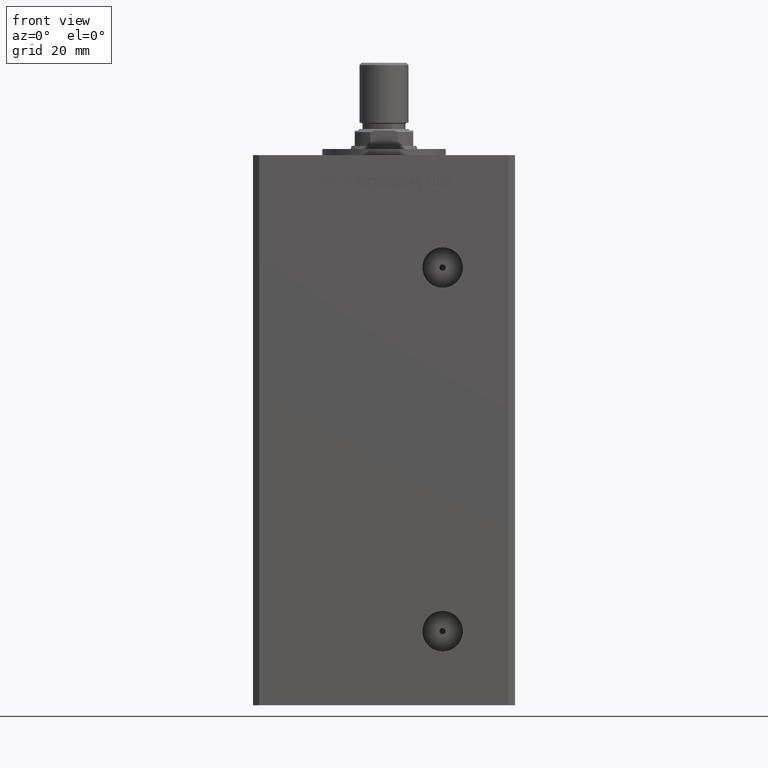
[diagram: clean part render]
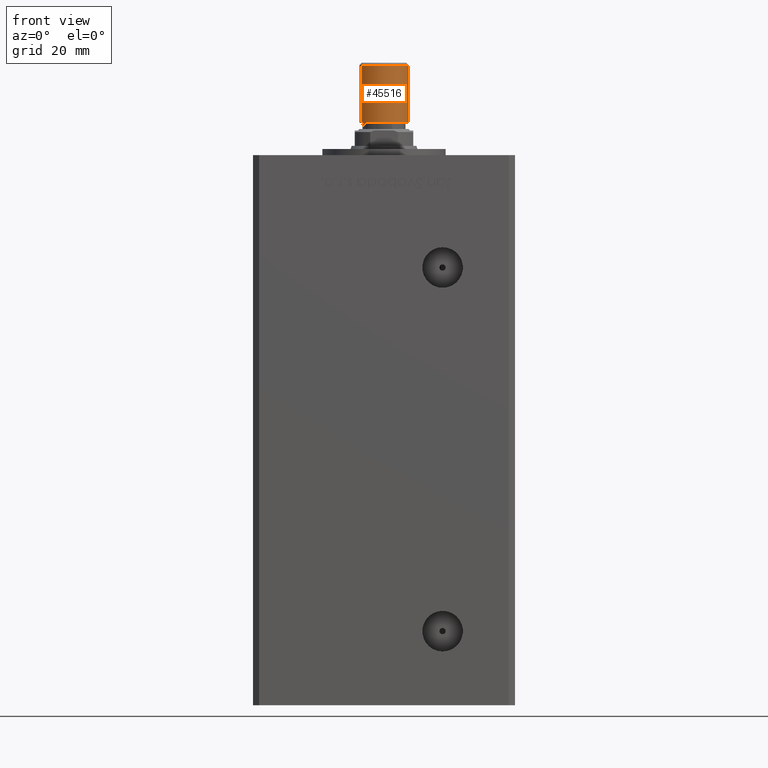
[diagram: same view with one face highlighted and labeled with its STEP entity id]
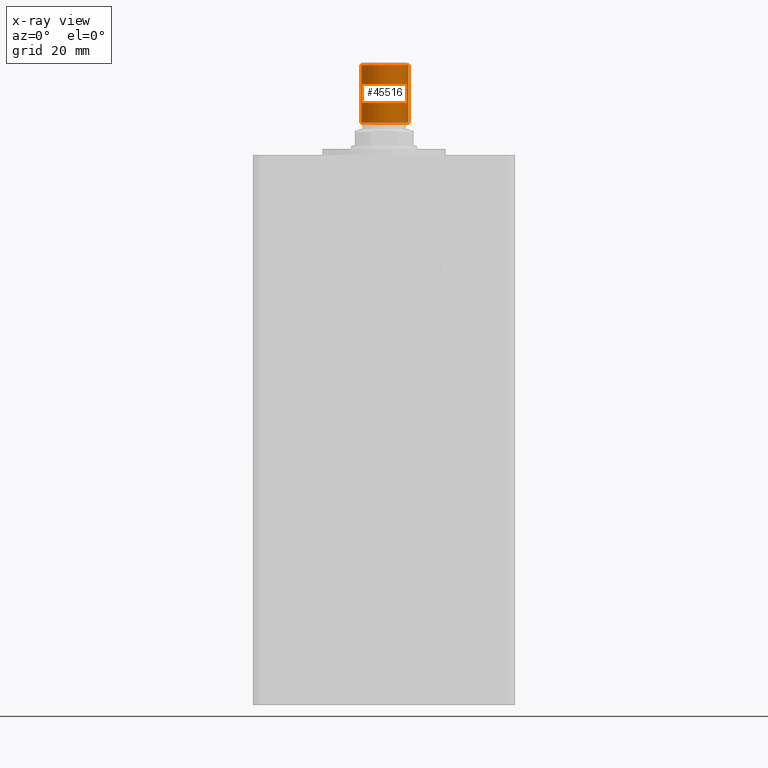
[diagram: x-ray of the same camera — body ghosted, the highlighted face saturated]
A machine part, front view. The second image highlights one B-rep face of the part: STEP entity #45516.
The next image is the same camera in x-ray: the body ghosted, the highlighted face saturated — about 0% of this face is hidden behind the body in this view.
In plain terms, the highlighted cylindrical surface (edge-blend (fillet) strip) has radius 8 mm, axis along (0, 0, 1).
Its self-contained STEP definition (entity closure, byte-faithful):
#2758 = EDGE_CURVE ( 'NONE', #9839, #23476, #8991, .T. ) ;
#3730 = EDGE_CURVE ( 'NONE', #34249, #23476, #21559, .T. ) ;
#4025 = EDGE_CURVE ( 'NONE', #19328, #9839, #4631, .T. ) ;
#4631 = CIRCLE ( 'NONE', #28347, 8.000000000000000000 ) ;
#5004 = DIRECTION ( 'NONE',  ( -0.000000000000000000, -0.000000000000000000, -1.000000000000000000 ) ) ;
#7512 = DIRECTION ( 'NONE',  ( 1.000000000000000000, 0.000000000000000000, 0.000000000000000000 ) ) ;
#7794 = CARTESIAN_POINT ( 'NONE',  ( 0.000000000000000000, 0.000000000000000000, 19.50000000000000000 ) ) ;
#8991 = LINE ( 'NONE', #41346, #50321 ) ;
#9839 = VERTEX_POINT ( 'NONE', #27697 ) ;
#10300 = CARTESIAN_POINT ( 'NONE',  ( -8.000000000000000000, 0.000000000000000000, 19.50000000000000000 ) ) ;
#13200 = EDGE_LOOP ( 'NONE', ( #34883, #52063, #45980, #17167 ) ) ;
#14953 = DIRECTION ( 'NONE',  ( -0.000000000000000000, -0.000000000000000000, 1.000000000000000000 ) ) ;
#16027 = CYLINDRICAL_SURFACE ( 'NONE', #51405, 8.000000000000000000 ) ;
#17167 = ORIENTED_EDGE ( 'NONE', *, *, #3730, .T. ) ;
#17933 = LINE ( 'NONE', #43106, #24877 ) ;
#18602 = DIRECTION ( 'NONE',  ( 1.000000000000000000, 0.000000000000000000, 0.000000000000000000 ) ) ;
#18630 = CARTESIAN_POINT ( 'NONE',  ( 8.000000000000000000, 9.797174393178825657E-16, 0.8000000000000055955 ) ) ;
#19328 = VERTEX_POINT ( 'NONE', #10300 ) ;
#21559 = CIRCLE ( 'NONE', #51204, 8.000000000000000000 ) ;
#22565 = CARTESIAN_POINT ( 'NONE',  ( -8.000000000000000000, 0.000000000000000000, 0.8000000000000055955 ) ) ;
#23476 = VERTEX_POINT ( 'NONE', #18630 ) ;
#24877 = VECTOR ( 'NONE', #26673, 1000.000000000000000 ) ;
#25028 = DIRECTION ( 'NONE',  ( -1.000000000000000000, 0.000000000000000000, 0.000000000000000000 ) ) ;
#26673 = DIRECTION ( 'NONE',  ( -0.000000000000000000, -0.000000000000000000, -1.000000000000000000 ) ) ;
#27697 = CARTESIAN_POINT ( 'NONE',  ( 8.000000000000000000, 9.797174393178825657E-16, 19.50000000000000000 ) ) ;
#28347 = AXIS2_PLACEMENT_3D ( 'NONE', #51738, #39292, #18602 ) ;
#29006 = FACE_OUTER_BOUND ( 'NONE', #13200, .T. ) ;
#30596 = CARTESIAN_POINT ( 'NONE',  ( 0.000000000000000000, 0.000000000000000000, 0.8000000000000055955 ) ) ;
#34249 = VERTEX_POINT ( 'NONE', #22565 ) ;
#34734 = EDGE_CURVE ( 'NONE', #19328, #34249, #17933, .T. ) ;
#34883 = ORIENTED_EDGE ( 'NONE', *, *, #2758, .F. ) ;
#39292 = DIRECTION ( 'NONE',  ( 0.000000000000000000, 0.000000000000000000, 1.000000000000000000 ) ) ;
#41346 = CARTESIAN_POINT ( 'NONE',  ( 8.000000000000000000, 9.797174393178825657E-16, 19.50000000000000000 ) ) ;
#43106 = CARTESIAN_POINT ( 'NONE',  ( -8.000000000000000000, 0.000000000000000000, 19.50000000000000000 ) ) ;
#45516 = ADVANCED_FACE ( 'NONE', ( #29006 ), #16027, .T. ) ;
#45980 = ORIENTED_EDGE ( 'NONE', *, *, #34734, .T. ) ;
#50321 = VECTOR ( 'NONE', #5004, 1000.000000000000000 ) ;
#51204 = AXIS2_PLACEMENT_3D ( 'NONE', #30596, #14953, #7512 ) ;
#51405 = AXIS2_PLACEMENT_3D ( 'NONE', #7794, #52341, #25028 ) ;
#51738 = CARTESIAN_POINT ( 'NONE',  ( 0.000000000000000000, 0.000000000000000000, 19.50000000000000000 ) ) ;
#52063 = ORIENTED_EDGE ( 'NONE', *, *, #4025, .F. ) ;
#52341 = DIRECTION ( 'NONE',  ( -0.000000000000000000, -0.000000000000000000, -1.000000000000000000 ) ) ;